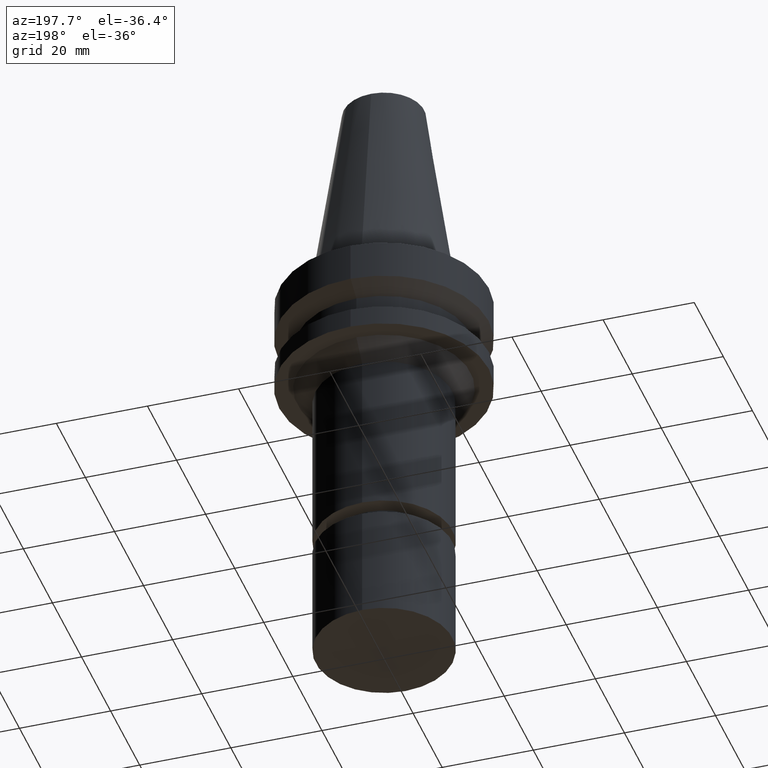
[diagram: clean part render]
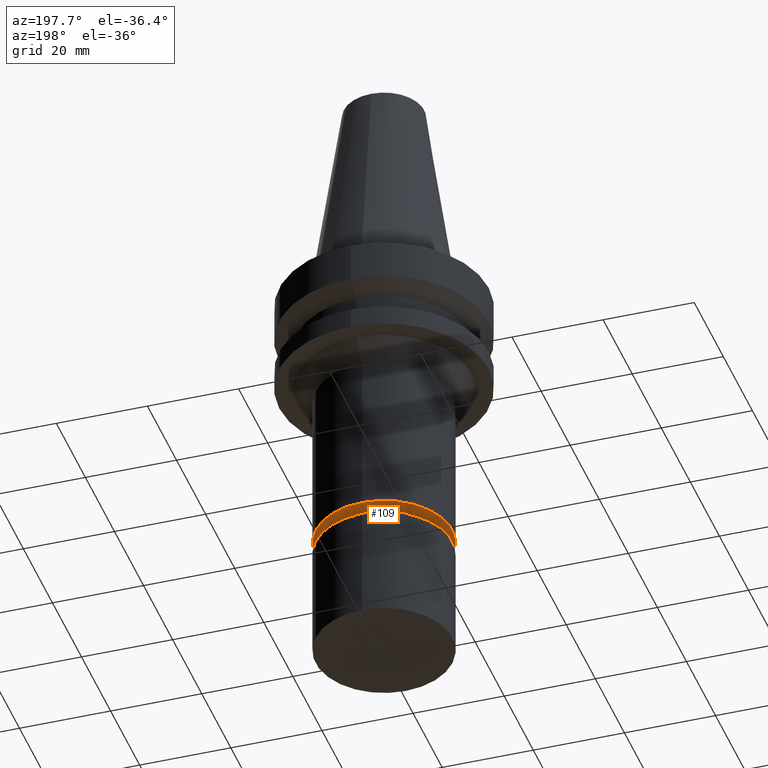
[diagram: same view with one face highlighted and labeled with its STEP entity id]
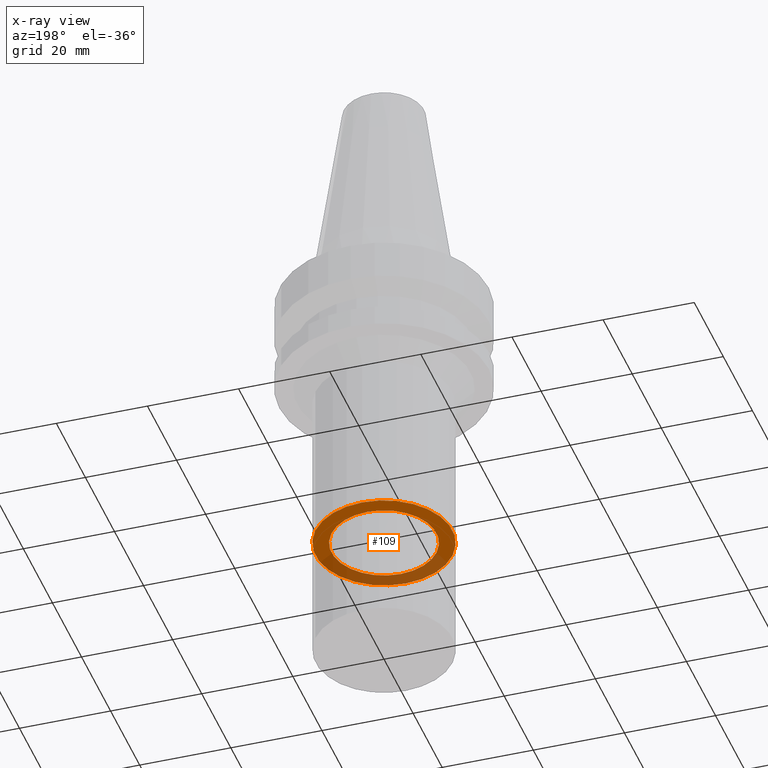
[diagram: x-ray of the same camera — body ghosted, the highlighted face saturated]
A machine part, auxiliary view. The second image highlights one B-rep face of the part: STEP entity #109.
The next image is the same camera in x-ray: the body ghosted, the highlighted face saturated — about 37% of this face is hidden behind the body in this view.
In plain terms, the highlighted planar face has unit normal (0, 0, -1).
Its self-contained STEP definition (entity closure, byte-faithful):
#80=EDGE_CURVE('Unnamed[1]',#207,#207,#208,.T.);
#109=ADVANCED_FACE('Unnamed[1]',(#252,#253),#254,.T.);
#149=EDGE_CURVE('Unnamed[1]',#316,#316,#317,.T.);
#207=VERTEX_POINT('',#384);
#208=CIRCLE('',#385,15.0000000000002);
#252=FACE_BOUND('',#440,.T.);
#253=FACE_OUTER_BOUND('',#441,.T.);
#254=PLANE('',#442);
#316=VERTEX_POINT('',#520);
#317=CIRCLE('',#521,11.4999999999907);
#384=CARTESIAN_POINT('',(3.80252831135249E-015,15.0000000000002,-62.0999999999994));
#385=AXIS2_PLACEMENT_3D('',#584,#585,#586);
#440=EDGE_LOOP('',(#635));
#441=EDGE_LOOP('',(#636));
#442=AXIS2_PLACEMENT_3D('',#637,#638,#639);
#520=CARTESIAN_POINT('',(3.80252831135254E-015,11.4999999999907,-62.1000000000001));
#521=AXIS2_PLACEMENT_3D('',#708,#709,#710);
#584=CARTESIAN_POINT('',(3.80252831135249E-015,7.60505662270498E-015,-62.0999999999994));
#585=DIRECTION('',(6.12323399573677E-017,1.22464679914799E-016,-1.0));
#586=DIRECTION('',(-1.23259516440781E-032,1.0,1.22464679914799E-016));
#635=ORIENTED_EDGE('',*,*,#149,.F.);
#636=ORIENTED_EDGE('',*,*,#80,.T.);
#637=CARTESIAN_POINT('',(3.80252831135251E-015,13.2499999999955,-62.0999999999997));
#638=DIRECTION('',(6.12323399573677E-017,2.03134674896534E-013,-1.0));
#639=DIRECTION('',(-1.24432386231247E-029,1.0,2.03134674896534E-013));
#708=CARTESIAN_POINT('',(3.80252831135254E-015,7.60505662270507E-015,-62.1000000000001));
#709=DIRECTION('',(6.12323399573677E-017,1.22464679914675E-016,-1.0));
#710=DIRECTION('',(-1.23259516440727E-032,1.0,1.22464679914675E-016));